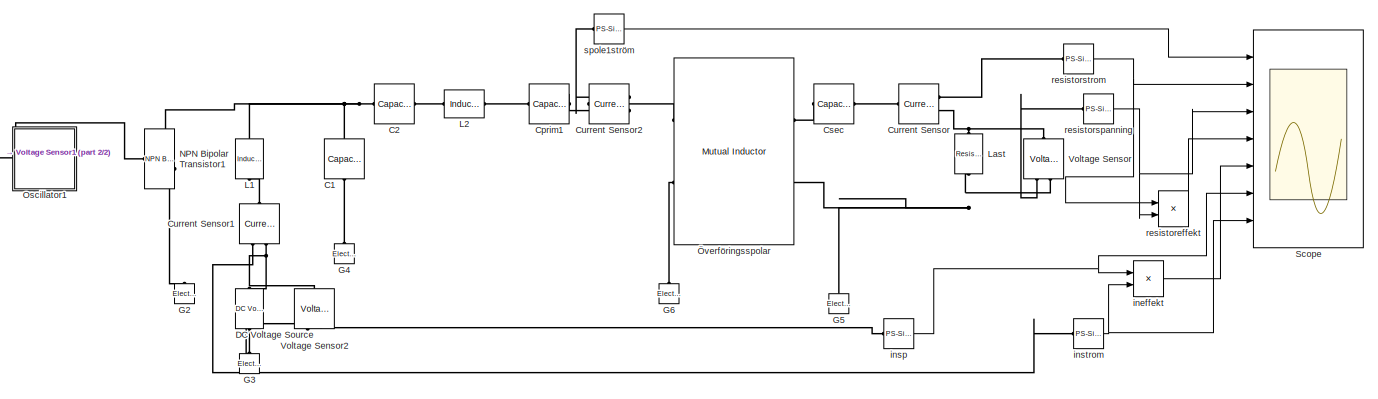
[diagram: root canvas - part 1/2, most of the canvas]
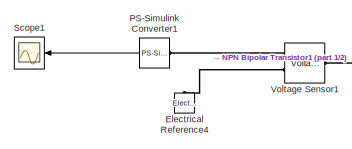
[diagram: root canvas - part 2/2, top left region]
MODEL slx_5afb923ec7a0
KIND model
CONFIG AbsTol = auto
CONFIG EnableMultiTasking = off
CONFIG FixedStep = auto
CONFIG MaxStep = auto
CONFIG MinStep = auto
CONFIG RelTol = 1e-3
CONFIG SampleTimeConstraint = Unconstrained
CONFIG Solver = VariableStepAuto
CONFIG SolverName = VariableStepAuto
CONFIG StartTime = 0.0
CONFIG StopTime = 0.0015
BLOCK [Reference] C1  REF=fl_lib/Electrical/Electrical Elements/Capacitor
  Ports = [0, 0, 0, 0, 0, 1, 1]
  SourceBlock = fl_lib/Electrical/Electrical Elements/Capacitor
  SourceProductBaseCode = SS
  SourceProductName = Simscape
  SourceType = Capacitor
BLOCK [Reference] C2  REF=fl_lib/Electrical/Electrical Elements/Capacitor
  Ports = [0, 0, 0, 0, 0, 1, 1]
  SourceBlock = fl_lib/Electrical/Electrical Elements/Capacitor
  SourceProductBaseCode = SS
  SourceProductName = Simscape
  SourceType = Capacitor
BLOCK [Reference] Cprim1  REF=fl_lib/Electrical/Electrical Elements/Capacitor
  Ports = [0, 0, 0, 0, 0, 1, 1]
  SourceBlock = fl_lib/Electrical/Electrical Elements/Capacitor
  SourceProductBaseCode = SS
  SourceProductName = Simscape
  SourceType = Capacitor
BLOCK [Reference] Csec  REF=fl_lib/Electrical/Electrical Elements/Capacitor
  Ports = [0, 0, 0, 0, 0, 1, 1]
  SourceBlock = fl_lib/Electrical/Electrical Elements/Capacitor
  SourceProductBaseCode = SS
  SourceProductName = Simscape
  SourceType = Capacitor
BLOCK [Reference] Current Sensor  REF=fl_lib/Electrical/Electrical Sensors/Current Sensor
  Ports = [0, 0, 0, 0, 0, 1, 2]
  SourceBlock = fl_lib/Electrical/Electrical Sensors/Current Sensor
  SourceProductBaseCode = SS
  SourceProductName = Simscape
  SourceType = Current Sensor
BLOCK [Reference] Current Sensor1  REF=fl_lib/Electrical/Electrical Sensors/Current Sensor
  Ports = [0, 0, 0, 0, 0, 1, 2]
  SourceBlock = fl_lib/Electrical/Electrical Sensors/Current Sensor
  SourceProductBaseCode = SS
  SourceProductName = Simscape
  SourceType = Current Sensor
BLOCK [Reference] Current Sensor2  REF=fl_lib/Electrical/Electrical Sensors/Current Sensor
  Ports = [0, 0, 0, 0, 0, 1, 2]
  SourceBlock = fl_lib/Electrical/Electrical Sensors/Current Sensor
  SourceProductBaseCode = SS
  SourceProductName = Simscape
  SourceType = Current Sensor
BLOCK [Reference] DC Voltage Source  REF=fl_lib/Electrical/Electrical Sources/DC Voltage Source
  Ports = [0, 0, 0, 0, 0, 1, 1]
  SourceBlock = fl_lib/Electrical/Electrical Sources/DC Voltage Source
  SourceProductBaseCode = SS
  SourceProductName = Simscape
  SourceType = DC Voltage Source
BLOCK [Reference] Electrical Reference4  REF=fl_lib/Electrical/Electrical Elements/Electrical Reference
  Ports = [0, 0, 0, 0, 0, 1]
  SourceBlock = fl_lib/Electrical/Electrical Elements/Electrical Reference
  SourceProductBaseCode = SS
  SourceProductName = Simscape
  SourceType = Electrical Reference
BLOCK [Reference] G2  REF=fl_lib/Electrical/Electrical Elements/Electrical Reference
  Ports = [0, 0, 0, 0, 0, 1]
  SourceBlock = fl_lib/Electrical/Electrical Elements/Electrical Reference
  SourceProductBaseCode = SS
  SourceProductName = Simscape
  SourceType = Electrical Reference
BLOCK [Reference] G3  REF=fl_lib/Electrical/Electrical Elements/Electrical Reference
  Ports = [0, 0, 0, 0, 0, 1]
  SourceBlock = fl_lib/Electrical/Electrical Elements/Electrical Reference
  SourceProductBaseCode = SS
  SourceProductName = Simscape
  SourceType = Electrical Reference
BLOCK [Reference] G4  REF=fl_lib/Electrical/Electrical Elements/Electrical Reference
  Ports = [0, 0, 0, 0, 0, 1]
  SourceBlock = fl_lib/Electrical/Electrical Elements/Electrical Reference
  SourceProductBaseCode = SS
  SourceProductName = Simscape
  SourceType = Electrical Reference
BLOCK [Reference] G5  REF=fl_lib/Electrical/Electrical Elements/Electrical Reference
  Ports = [0, 0, 0, 0, 0, 1]
  SourceBlock = fl_lib/Electrical/Electrical Elements/Electrical Reference
  SourceProductBaseCode = SS
  SourceProductName = Simscape
  SourceType = Electrical Reference
BLOCK [Reference] G6  REF=fl_lib/Electrical/Electrical Elements/Electrical Reference
  Ports = [0, 0, 0, 0, 0, 1]
  SourceBlock = fl_lib/Electrical/Electrical Elements/Electrical Reference
  SourceProductBaseCode = SS
  SourceProductName = Simscape
  SourceType = Electrical Reference
BLOCK [Reference] L1  REF=fl_lib/Electrical/Electrical Elements/Inductor
  Ports = [0, 0, 0, 0, 0, 1, 1]
  SourceBlock = fl_lib/Electrical/Electrical Elements/Inductor
  SourceProductBaseCode = SS
  SourceProductName = Simscape
  SourceType = Inductor
BLOCK [Reference] L2  REF=fl_lib/Electrical/Electrical Elements/Inductor
  Ports = [0, 0, 0, 0, 0, 1, 1]
  SourceBlock = fl_lib/Electrical/Electrical Elements/Inductor
  SourceProductBaseCode = SS
  SourceProductName = Simscape
  SourceType = Inductor
BLOCK [Reference] Last  REF=fl_lib/Electrical/Electrical Elements/Resistor
  Ports = [0, 0, 0, 0, 0, 1, 1]
  SourceBlock = fl_lib/Electrical/Electrical Elements/Resistor
  SourceProductBaseCode = SS
  SourceProductName = Simscape
  SourceType = Resistor
BLOCK [Reference] NPN Bipolar Transistor1  REF=elec_lib/Semiconductor
Devices/NPN Bipolar
Transistor
  Ports = [0, 0, 0, 0, 0, 1, 2]
  SourceBlock = elec_lib/Semiconductor\nDevices/NPN Bipolar\nTransistor
  SourceProductBaseCode = SN
  SourceProductName = Simscape Electronics
  SourceType = NPN Bipolar\nTransistor
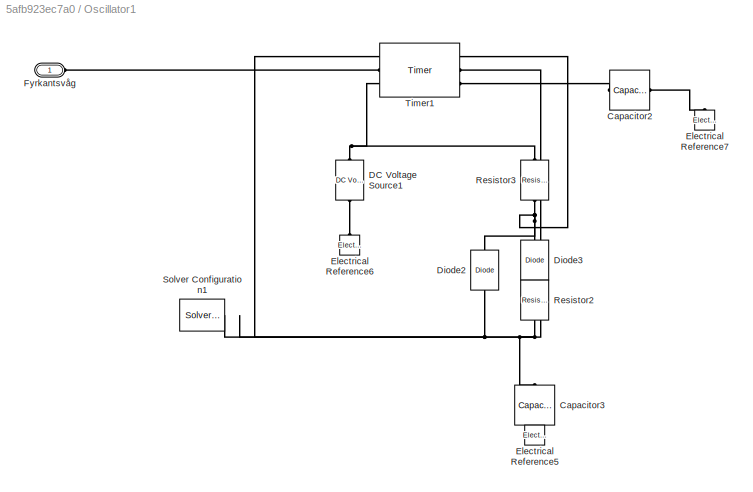
BLOCK [SubSystem] Oscillator1
  Ports = [0, 0, 0, 0, 0, 1]
  RequestExecContextInheritance = off
  Variant = off
BLOCK [Reference] Oscillator1/Capacitor2  REF=fl_lib/Electrical/Electrical Elements/Capacitor
  Ports = [0, 0, 0, 0, 0, 1, 1]
  SourceBlock = fl_lib/Electrical/Electrical Elements/Capacitor
  SourceProductBaseCode = SS
  SourceProductName = Simscape
  SourceType = Capacitor
BLOCK [Reference] Oscillator1/Capacitor3  REF=fl_lib/Electrical/Electrical Elements/Capacitor
  Ports = [0, 0, 0, 0, 0, 1, 1]
  SourceBlock = fl_lib/Electrical/Electrical Elements/Capacitor
  SourceProductBaseCode = SS
  SourceProductName = Simscape
  SourceType = Capacitor
BLOCK [Reference] Oscillator1/DC Voltage Source1  REF=fl_lib/Electrical/Electrical Sources/DC Voltage Source
  Ports = [0, 0, 0, 0, 0, 1, 1]
  SourceBlock = fl_lib/Electrical/Electrical Sources/DC Voltage Source
  SourceProductBaseCode = SS
  SourceProductName = Simscape
  SourceType = DC Voltage Source
BLOCK [Reference] Oscillator1/Diode2  REF=elec_lib/Semiconductor
Devices/Diode
  Ports = [0, 0, 0, 0, 0, 1, 1]
  SourceBlock = elec_lib/Semiconductor\nDevices/Diode
  SourceProductBaseCode = SN
  SourceProductName = Simscape Electronics
  SourceType = Diode
BLOCK [Reference] Oscillator1/Diode3  REF=elec_lib/Semiconductor
Devices/Diode
  Ports = [0, 0, 0, 0, 0, 1, 1]
  SourceBlock = elec_lib/Semiconductor\nDevices/Diode
  SourceProductBaseCode = SN
  SourceProductName = Simscape Electronics
  SourceType = Diode
BLOCK [Reference] Oscillator1/Electrical Reference5  REF=fl_lib/Electrical/Electrical Elements/Electrical Reference
  Ports = [0, 0, 0, 0, 0, 1]
  SourceBlock = fl_lib/Electrical/Electrical Elements/Electrical Reference
  SourceProductBaseCode = SS
  SourceProductName = Simscape
  SourceType = Electrical Reference
BLOCK [Reference] Oscillator1/Electrical Reference6  REF=fl_lib/Electrical/Electrical Elements/Electrical Reference
  Ports = [0, 0, 0, 0, 0, 1]
  SourceBlock = fl_lib/Electrical/Electrical Elements/Electrical Reference
  SourceProductBaseCode = SS
  SourceProductName = Simscape
  SourceType = Electrical Reference
BLOCK [Reference] Oscillator1/Electrical Reference7  REF=fl_lib/Electrical/Electrical Elements/Electrical Reference
  Ports = [0, 0, 0, 0, 0, 1]
  SourceBlock = fl_lib/Electrical/Electrical Elements/Electrical Reference
  SourceProductBaseCode = SS
  SourceProductName = Simscape
  SourceType = Electrical Reference
BLOCK [PMIOPort] Oscillator1/Fyrkantsvåg
  Port = 1
  Side = Left
BLOCK [Reference] Oscillator1/Resistor2  REF=fl_lib/Electrical/Electrical Elements/Resistor
  Ports = [0, 0, 0, 0, 0, 1, 1]
  SourceBlock = fl_lib/Electrical/Electrical Elements/Resistor
  SourceProductBaseCode = SS
  SourceProductName = Simscape
  SourceType = Resistor
BLOCK [Reference] Oscillator1/Resistor3  REF=fl_lib/Electrical/Electrical Elements/Resistor
  Ports = [0, 0, 0, 0, 0, 1, 1]
  SourceBlock = fl_lib/Electrical/Electrical Elements/Resistor
  SourceProductBaseCode = SS
  SourceProductName = Simscape
  SourceType = Resistor
BLOCK [Reference] Oscillator1/Solver Configuration1  REF=nesl_utility/Solver
Configuration
  Ports = [0, 0, 0, 0, 0, 0, 1]
  SourceBlock = nesl_utility/Solver\nConfiguration
  SourceProductBaseCode = SS
  SourceProductName = Simscape
  SourceType = Solver\nConfiguration
BLOCK [Reference] Oscillator1/Timer1  REF=elec_lib/Integrated Circuits/Timer
  Ports = [0, 0, 0, 0, 0, 3, 3]
  SourceBlock = elec_lib/Integrated Circuits/Timer
  SourceProductBaseCode = SN
  SourceProductName = Simscape Electronics
  SourceType = Timer
BLOCK [Reference] PS-Simulink Converter1  REF=nesl_utility/PS-Simulink
Converter
  Ports = [0, 1, 0, 0, 0, 1]
  SourceBlock = nesl_utility/PS-Simulink\nConverter
  SourceProductBaseCode = SS
  SourceProductName = Simscape
  SourceType = PS-Simulink\nConverter
BLOCK [Scope] Scope
  NumInputPorts = 7
  Ports = [7]
  ScopeSpecificationString = Simulink.scopes.TimeScopeBlockCfg('CurrentConfiguration', extmgr.ConfigurationSet(extmgr.Configuration('Core','General UI',true),extmgr.Configuration('Core','Source UI',true),extmgr.Configuration('Sources','WiredSimulink',true),extmgr.Configuration('Visuals','Time Domain',true,'SerializedDisplays',{struct('MinYLimReal','-1.33682','MaxYLimReal','1.33849','YLabelReal','','MinYLimMag','0.00000','MaxY...<+3492ch>
BLOCK [Scope] Scope1
  NumInputPorts = 1
  Ports = [1]
  ScopeSpecificationString = Simulink.scopes.TimeScopeBlockCfg('CurrentConfiguration', extmgr.ConfigurationSet(extmgr.Configuration('Core','General UI',true),extmgr.Configuration('Core','Source UI',true),extmgr.Configuration('Sources','WiredSimulink',true,'DataLoggingVariableName','ScopeData1'),extmgr.Configuration('Visuals','Time Domain',true,'SerializedDisplays',{struct('MinYLimReal','-0.125','MaxYLimReal','1.125','YLabelRe...<+1770ch>
BLOCK [Reference] Voltage Sensor  REF=fl_lib/Electrical/Electrical Sensors/Voltage Sensor
  Ports = [0, 0, 0, 0, 0, 1, 2]
  SourceBlock = fl_lib/Electrical/Electrical Sensors/Voltage Sensor
  SourceProductBaseCode = SS
  SourceProductName = Simscape
  SourceType = Voltage Sensor
BLOCK [Reference] Voltage Sensor1  REF=fl_lib/Electrical/Electrical Sensors/Voltage Sensor
  Ports = [0, 0, 0, 0, 0, 1, 2]
  SourceBlock = fl_lib/Electrical/Electrical Sensors/Voltage Sensor
  SourceProductBaseCode = SS
  SourceProductName = Simscape
  SourceType = Voltage Sensor
BLOCK [Reference] Voltage Sensor2  REF=fl_lib/Electrical/Electrical Sensors/Voltage Sensor
  Ports = [0, 0, 0, 0, 0, 1, 2]
  SourceBlock = fl_lib/Electrical/Electrical Sensors/Voltage Sensor
  SourceProductBaseCode = SS
  SourceProductName = Simscape
  SourceType = Voltage Sensor
BLOCK [Product] ineffekt
  InputSameDT = off
  OutDataTypeStr = Inherit: Inherit via internal rule
  Ports = [2, 1]
  RndMeth = Floor
  SaturateOnIntegerOverflow = off
BLOCK [Reference] insp  REF=nesl_utility/PS-Simulink
Converter
  Ports = [0, 1, 0, 0, 0, 1]
  SourceBlock = nesl_utility/PS-Simulink\nConverter
  SourceProductBaseCode = SS
  SourceProductName = Simscape
  SourceType = PS-Simulink\nConverter
BLOCK [Reference] instrom  REF=nesl_utility/PS-Simulink
Converter
  Ports = [0, 1, 0, 0, 0, 1]
  SourceBlock = nesl_utility/PS-Simulink\nConverter
  SourceProductBaseCode = SS
  SourceProductName = Simscape
  SourceType = PS-Simulink\nConverter
BLOCK [Product] resistoreffekt 
  InputSameDT = off
  OutDataTypeStr = Inherit: Inherit via internal rule
  Ports = [2, 1]
  RndMeth = Floor
  SaturateOnIntegerOverflow = off
BLOCK [Reference] resistorspanning  REF=nesl_utility/PS-Simulink
Converter
  Ports = [0, 1, 0, 0, 0, 1]
  SourceBlock = nesl_utility/PS-Simulink\nConverter
  SourceProductBaseCode = SS
  SourceProductName = Simscape
  SourceType = PS-Simulink\nConverter
BLOCK [Reference] resistorstrom  REF=nesl_utility/PS-Simulink
Converter
  Ports = [0, 1, 0, 0, 0, 1]
  SourceBlock = nesl_utility/PS-Simulink\nConverter
  SourceProductBaseCode = SS
  SourceProductName = Simscape
  SourceType = PS-Simulink\nConverter
BLOCK [Reference] spole1ström  REF=nesl_utility/PS-Simulink
Converter
  Ports = [0, 1, 0, 0, 0, 1]
  SourceBlock = nesl_utility/PS-Simulink\nConverter
  SourceProductBaseCode = SS
  SourceProductName = Simscape
  SourceType = PS-Simulink\nConverter
BLOCK [Reference] Överföringsspolar  REF=fl_lib/Electrical/Electrical Elements/Mutual Inductor
  Ports = [0, 0, 0, 0, 0, 2, 2]
  SourceBlock = fl_lib/Electrical/Electrical Elements/Mutual Inductor
  SourceProductBaseCode = SS
  SourceProductName = Simscape
  SourceType = Mutual Inductor
LINE PS-Simulink Converter1:1 -> Scope1:1
LINE ineffekt:1 -> Scope:5
NET insp:1 -> Scope:6, ineffekt:1
NET instrom:1 -> Scope:7, ineffekt:2
LINE resistoreffekt :1 -> Scope:4
NET resistorspanning:1 -> Scope:3, resistoreffekt :2
NET resistorstrom:1 -> Scope:2, resistoreffekt :1
LINE spole1ström:1 -> Scope:1
PNET net1: C1:LConn1 -- C2:LConn1 -- L1:RConn1 -- NPN Bipolar Transistor1:RConn1
PLINE C1:RConn1 -- G4:LConn1
PLINE C2:RConn1 -- L2:LConn1
PLINE Cprim1:LConn1 -- L2:RConn1
PLINE Cprim1:RConn1 -- Current Sensor2:RConn2
PLINE Csec:LConn1 -- Överföringsspolar:RConn1
PLINE Csec:RConn1 -- Current Sensor:LConn1
PLINE Current Sensor1:LConn1 -- L1:LConn1
PLINE Current Sensor1:RConn1 -- instrom:LConn1
PNET net2: Current Sensor1:RConn2 -- DC Voltage Source:LConn1 -- Voltage Sensor2:LConn1
PLINE Current Sensor2:LConn1 -- Överföringsspolar:LConn1
PLINE Current Sensor2:RConn1 -- spole1ström:LConn1
PLINE Current Sensor:RConn1 -- resistorstrom:LConn1
PNET net3: Current Sensor:RConn2 -- Last:LConn1 -- Voltage Sensor:LConn1
PNET net4: DC Voltage Source:RConn1 -- G3:LConn1 -- Voltage Sensor2:RConn2
PLINE Electrical Reference4:LConn1 -- Voltage Sensor1:RConn2
PLINE G2:LConn1 -- NPN Bipolar Transistor1:RConn2
PNET net5: G5:LConn1 -- Last:RConn1 -- Voltage Sensor:RConn2 -- Överföringsspolar:RConn2
PLINE G6:LConn1 -- Överföringsspolar:LConn2
PNET net6: NPN Bipolar Transistor1:LConn1 -- Oscillator1:LConn1 -- Voltage Sensor1:LConn1
PLINE Oscillator1/Capacitor2:LConn1 -- Oscillator1/Timer1:RConn3
PLINE Oscillator1/Capacitor2:RConn1 -- Oscillator1/Electrical Reference7:LConn1
PNET net7: Oscillator1/Capacitor3:LConn1 -- Oscillator1/Diode2:RConn1 -- Oscillator1/Resistor2:RConn1 -- Oscillator1/Solver Configuration1:RConn1 -- Oscillator1/Timer1:LConn1 -- Oscillator1/Timer1:RConn2
PLINE Oscillator1/Capacitor3:RConn1 -- Oscillator1/Electrical Reference5:LConn1
PNET net8: Oscillator1/DC Voltage Source1:LConn1 -- Oscillator1/Resistor3:LConn1 -- Oscillator1/Timer1:LConn3
PLINE Oscillator1/DC Voltage Source1:RConn1 -- Oscillator1/Electrical Reference6:LConn1
PNET net9: Oscillator1/Diode2:LConn1 -- Oscillator1/Diode3:RConn1 -- Oscillator1/Resistor3:RConn1 -- Oscillator1/Timer1:RConn1
PLINE Oscillator1/Diode3:LConn1 -- Oscillator1/Resistor2:LConn1
PLINE Oscillator1/Fyrkantsvåg:RConn1 -- Oscillator1/Timer1:LConn2
PLINE PS-Simulink Converter1:LConn1 -- Voltage Sensor1:RConn1
PLINE Voltage Sensor2:RConn1 -- insp:LConn1
PLINE Voltage Sensor:RConn1 -- resistorspanning:LConn1
note: NET lines group one-source signal fan-out (src -> all destinations, sorted); 1:1 wires keep LINE; PNET lines group multi-terminal physical nets as a canonical sorted terminal list (undirected conserving connections); 2-terminal nets keep the pairwise PLINE form
